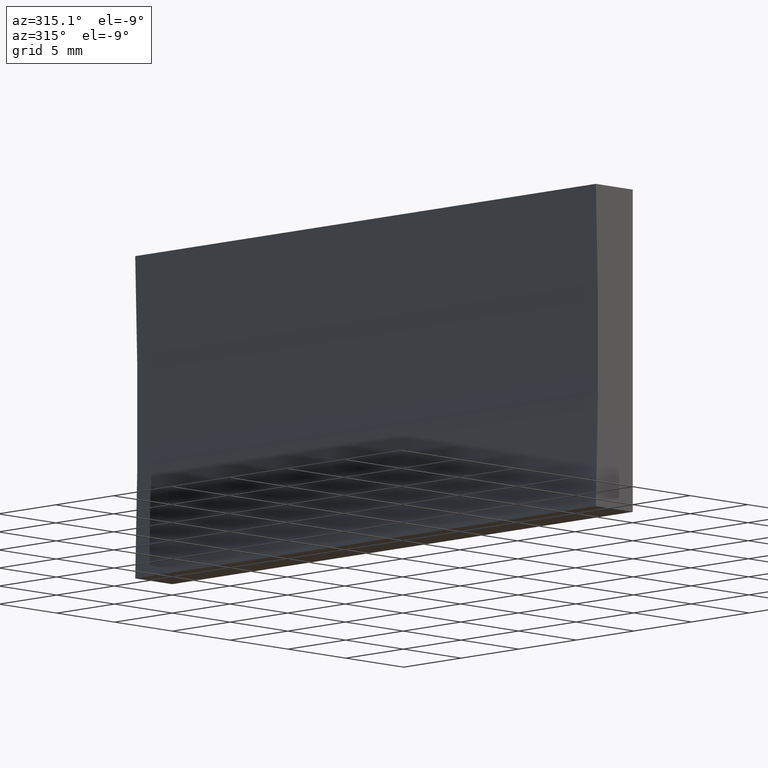
[diagram: clean part render]
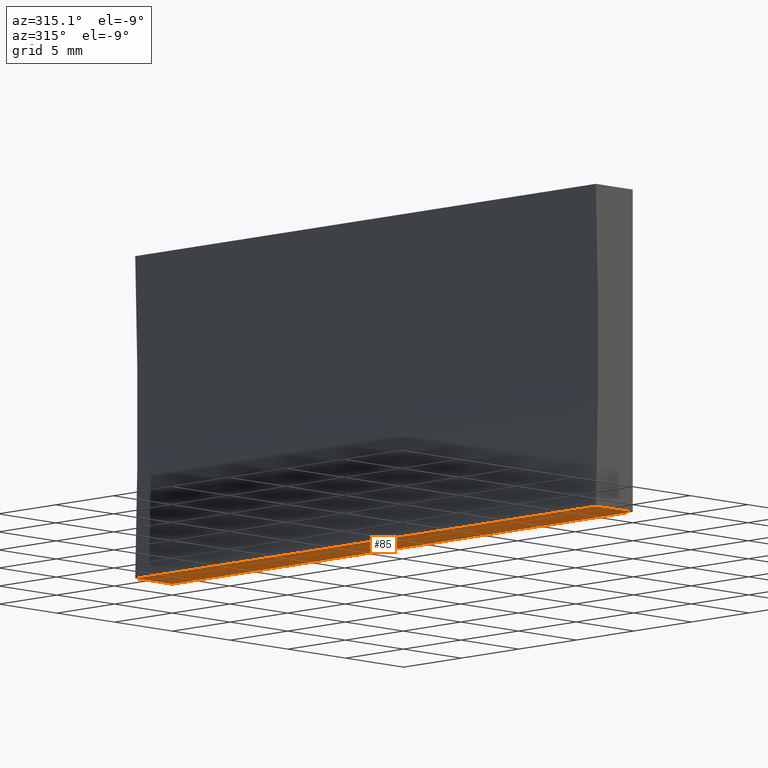
[diagram: same view with one face highlighted and labeled with its STEP entity id]
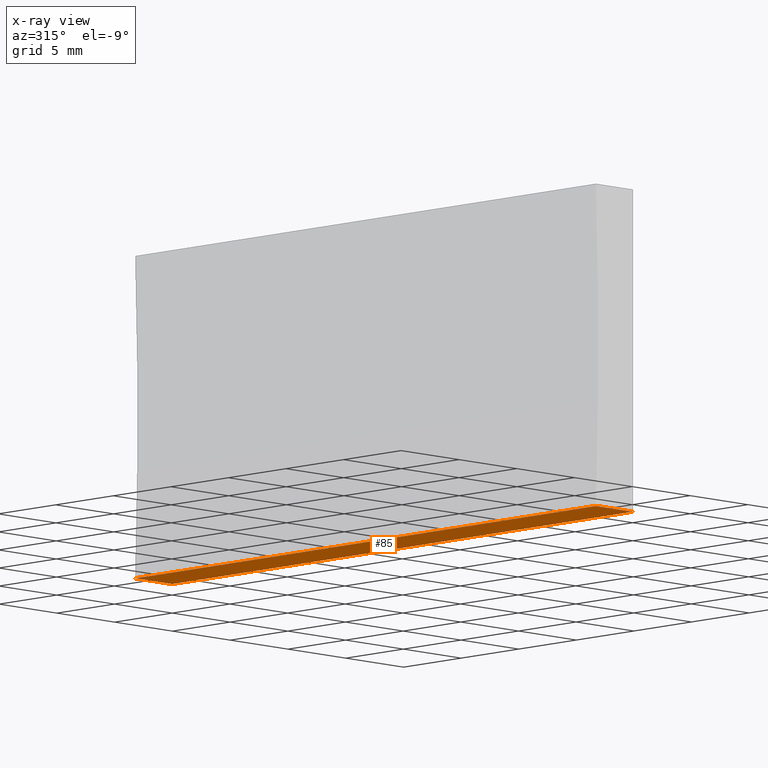
[diagram: x-ray of the same camera — body ghosted, the highlighted face saturated]
A machine part, auxiliary view. The second image highlights one B-rep face of the part: STEP entity #85.
The next image is the same camera in x-ray: the body ghosted, the highlighted face saturated — about 0% of this face is hidden behind the body in this view.
In plain terms, the highlighted planar face has unit normal (-0, 0, 1).
Its self-contained STEP definition (entity closure, byte-faithful):
#5 = ORIENTED_EDGE ( 'NONE', *, *, #161, .T. ) ;
#8 = VECTOR ( 'NONE', #9, 1000.000000000000000 ) ;
#9 = DIRECTION ( 'NONE',  ( -0.0000000000000000000, -1.000000000000000000, -0.0000000000000000000 ) ) ;
#11 = LINE ( 'NONE', #138, #125 ) ;
#14 = LINE ( 'NONE', #89, #8 ) ;
#16 = ORIENTED_EDGE ( 'NONE', *, *, #84, .F. ) ;
#27 = DIRECTION ( 'NONE',  ( -1.000000000000000000, 0.0000000000000000000, -1.086410295692778200E-015 ) ) ;
#31 = LINE ( 'NONE', #202, #96 ) ;
#33 = DIRECTION ( 'NONE',  ( -1.000000000000000000, 0.0000000000000000000, -1.086410295692778200E-015 ) ) ;
#39 = DIRECTION ( 'NONE',  ( 1.000000000000000000, 0.0000000000000000000, 1.086410295692778200E-015 ) ) ;
#40 = VECTOR ( 'NONE', #33, 1000.000000000000000 ) ;
#41 = PLANE ( 'NONE',  #72 ) ;
#54 = LINE ( 'NONE', #170, #40 ) ;
#57 = VERTEX_POINT ( 'NONE', #169 ) ;
#63 = ORIENTED_EDGE ( 'NONE', *, *, #171, .T. ) ;
#72 = AXIS2_PLACEMENT_3D ( 'NONE', #155, #173, #39 ) ;
#84 = EDGE_CURVE ( 'NONE', #177, #191, #31, .T. ) ;
#85 = ADVANCED_FACE ( 'NONE', ( #194 ), #41, .F. ) ;
#89 = CARTESIAN_POINT ( 'NONE',  ( 0.0000000000000000000, 40.00000000000000000, 0.0000000000000000000 ) ) ;
#96 = VECTOR ( 'NONE', #188, 1000.000000000000000 ) ;
#105 = ORIENTED_EDGE ( 'NONE', *, *, #118, .F. ) ;
#108 = CARTESIAN_POINT ( 'NONE',  ( -3.193496016844377100, 40.00000000000000000, -1.734723475976807100E-014 ) ) ;
#111 = VERTEX_POINT ( 'NONE', #137 ) ;
#118 = EDGE_CURVE ( 'NONE', #57, #177, #11, .T. ) ;
#125 = VECTOR ( 'NONE', #27, 1000.000000000000000 ) ;
#137 = CARTESIAN_POINT ( 'NONE',  ( 0.0000000000000000000, 0.0000000000000000000, 0.0000000000000000000 ) ) ;
#138 = CARTESIAN_POINT ( 'NONE',  ( 0.0000000000000000000, 40.00000000000000000, 0.0000000000000000000 ) ) ;
#152 = EDGE_LOOP ( 'NONE', ( #5, #16, #105, #63 ) ) ;
#155 = CARTESIAN_POINT ( 'NONE',  ( 0.0000000000000000000, 40.00000000000000000, 0.0000000000000000000 ) ) ;
#161 = EDGE_CURVE ( 'NONE', #111, #191, #54, .T. ) ;
#169 = CARTESIAN_POINT ( 'NONE',  ( 0.0000000000000000000, 40.00000000000000000, 0.0000000000000000000 ) ) ;
#170 = CARTESIAN_POINT ( 'NONE',  ( 0.0000000000000000000, 0.0000000000000000000, 0.0000000000000000000 ) ) ;
#171 = EDGE_CURVE ( 'NONE', #57, #111, #14, .T. ) ;
#173 = DIRECTION ( 'NONE',  ( -1.086410295692778200E-015, 0.0000000000000000000, 1.000000000000000000 ) ) ;
#177 = VERTEX_POINT ( 'NONE', #108 ) ;
#181 = CARTESIAN_POINT ( 'NONE',  ( -3.193496016844377100, 0.0000000000000000000, -1.734723475976807100E-014 ) ) ;
#188 = DIRECTION ( 'NONE',  ( -0.0000000000000000000, -1.000000000000000000, -0.0000000000000000000 ) ) ;
#191 = VERTEX_POINT ( 'NONE', #181 ) ;
#194 = FACE_OUTER_BOUND ( 'NONE', #152, .T. ) ;
#202 = CARTESIAN_POINT ( 'NONE',  ( -3.193496016844377100, 40.00000000000000000, -1.734723475976807100E-014 ) ) ;